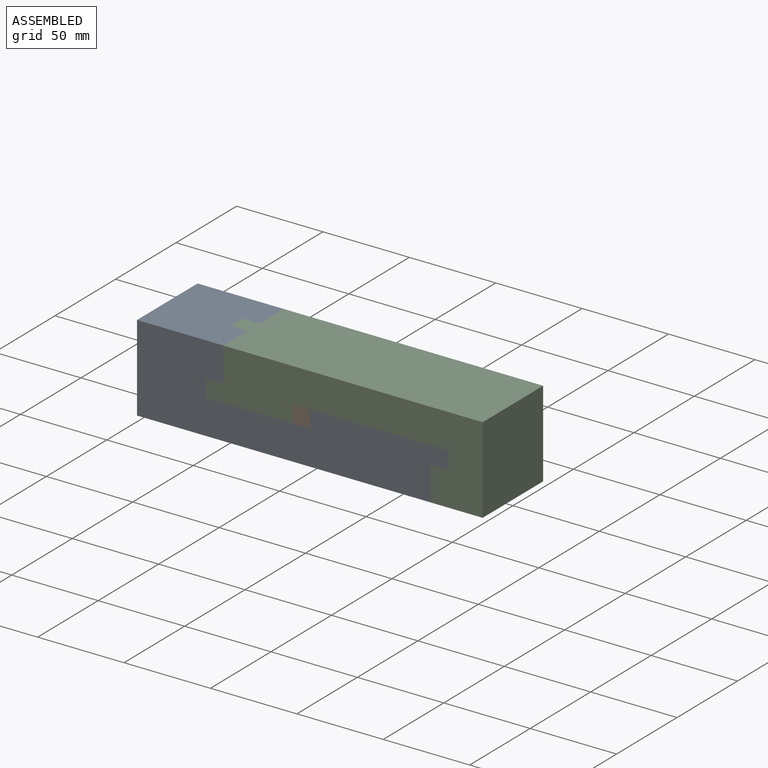
[diagram: assembled view]
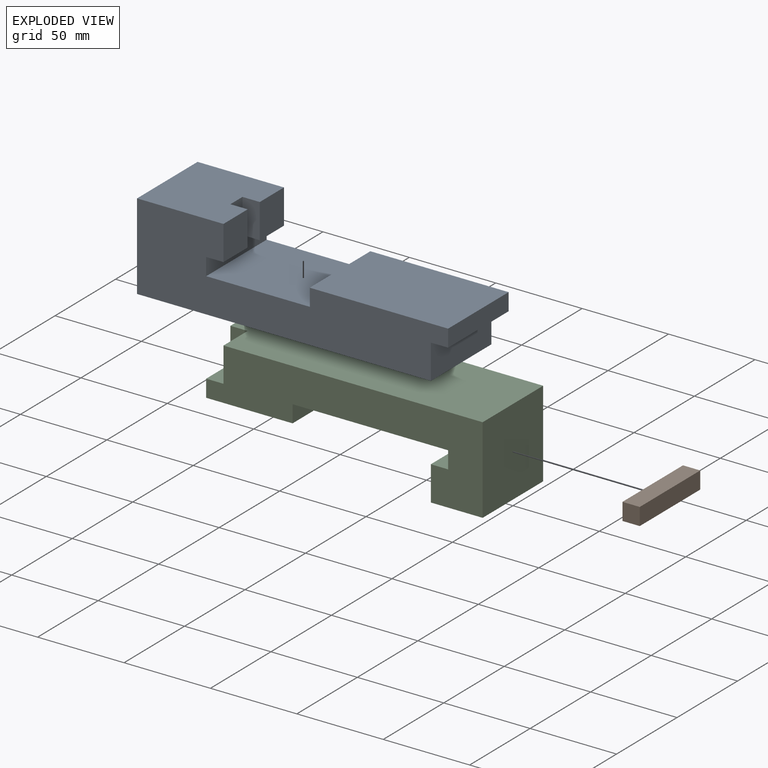
[diagram: exploded view]
GUIDED TOUR — MATED ASSEMBLY (Onshape document c86ce2c42afa6f947982e12e, AutoMate assembly c86ce2c42afa6f947982e12e_3cb3f2c267b6bb68d466cdde_ff3dd0983588e951febfa37c_default)

This assembly has 3 components, labeled P0..P2 below (a component is one placed occurrence of a part; the same part can appear more than once), held together by 6 mates. A mate is a constraint between two components; its type names the relative motion it leaves free:
  PLANAR — leaves sliding in the plane through the listed point (normal = the listed direction) and rotation about that normal free.
Axis/direction vectors are unit vectors and 'through' points are millimeter coordinates, both in the assembly's world frame.

MATES
  1. PLANAR "平面 3": P2 <-> P0, direction (0.000, -1.000, 0.000) through (29.42, -25.00, 8.37) mm
  2. PLANAR "平面 1": P2 <-> P0, direction (-1.000, 0.000, 0.000) through (-60.00, 0.00, 4.29) mm
  3. PLANAR "平面 2": P0 <-> P2, direction (0.000, 0.000, 1.000) through (-30.00, 25.00, -5.00) mm
  4. PLANAR "平面 5": P0 <-> P1, direction (-1.000, 0.000, 0.000) through (0.00, -25.00, 0.00) mm
  5. PLANAR "平面 6": P1 <-> P0, direction (0.000, -1.000, 0.000) through (-5.00, -25.00, 0.00) mm
  6. PLANAR "平面 4": P2 <-> P1, direction (0.000, 0.000, -1.000) through (-10.00, 0.00, 5.00) mm

ASSEMBLY ORDER
  1. P2 — the base component [order verified]
  2. P1 [order verified]
  3. P0 [order verified]
Order-tag legend:
  [order verified] — this step's position reverses a verified removal order: the component was checked to insert without passing through the ones already placed.

Of the 3 components, 3 carry the full construction recipe — the FeatureScript program that regenerates the part's solid from scratch; the rest are supplied as boundary geometry only.
Each toured component is shown spotlighted twice — in the assembled view, then in the exploded view, where a leader line traces a displaced component back to its assembled socket (saturated green if recipe-attached, orange if geometry-only; every other component desaturated gray) — followed by its recipe or geometry summary and the mates that hold it.
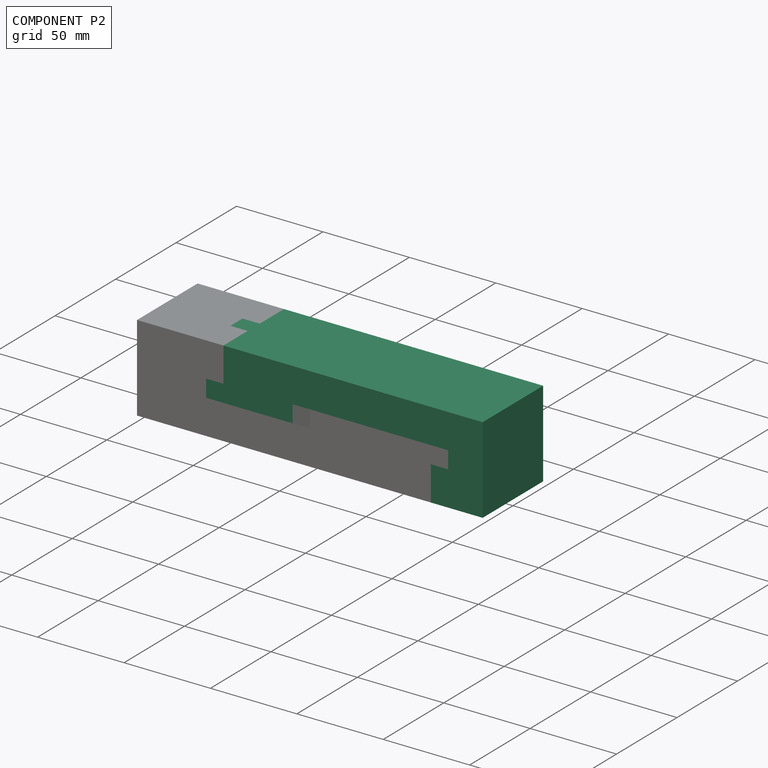
[diagram: component P2 — assembled]
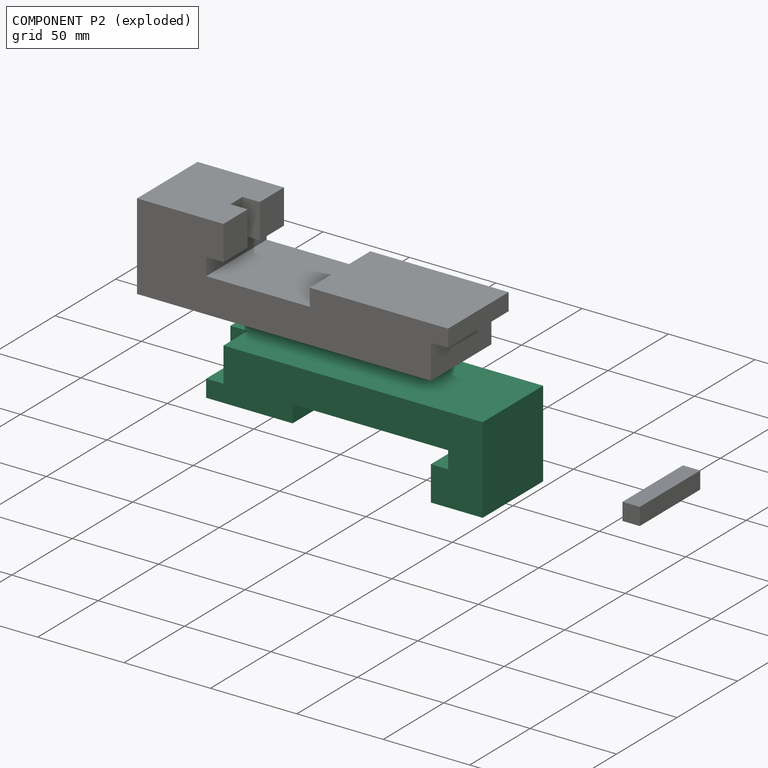
[diagram: component P2 — exploded]
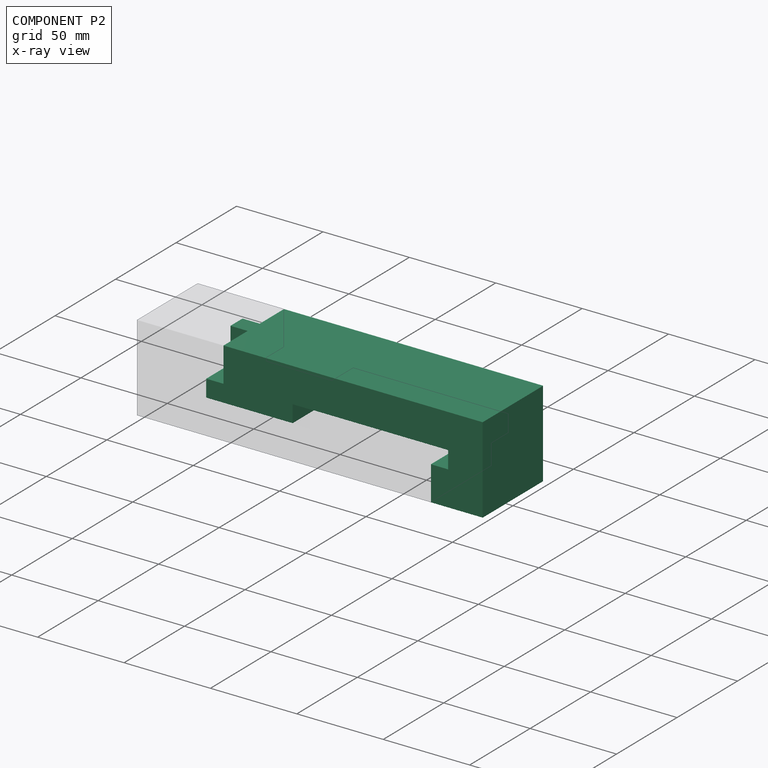
[diagram: component P2 — x-ray view]
COMPONENT P2 — recipe-attached (CADFS 00290381, mesh-verified: the recipe's output STEP matches this component's geometry to below the mesh-comparison resolution (tessellation chordal tolerance ~0.262 mm)).
Held by: PLANAR mate "平面 3" to P0; PLANAR mate "平面 1" to P0; PLANAR mate "平面 2" to P0; PLANAR mate "平面 4" to P1.
Construction recipe (FeatureScript — the CAD program that rebuilds this solid; sketch coordinates are in the units given by the * unit suffixes, e.g. mm):

FeatureScript 1511;
import(path : "onshape/std/geometry.fs", version : "1511.0");
import(path : "onshape/std/common.fs", version : "1511.0");
const mm = millimeter;
const VERTEX = EntityType.VERTEX;
const EDGE = EntityType.EDGE;
const FACE = EntityType.FACE;
const BODY = EntityType.BODY;
function v(x, y){return vector(x, y);}
function OD(order){return orderDisambiguation(order);}
function OSD(set){return originalSetDisambiguation(set);}
function TD(topology){return topologyDisambiguation(topology);}
function TDD(query){return trueDependencyDisambiguation(query);}
function sQuery(a, b, c) {return sketchEntityQuery(a, b, c);}

annotation { "Feature Type Name" : "Feature", "Feature Type Description" : "" }
export const myFeature = defineFeature(function(context is Context, id is Id, definition is map)
    precondition{}
    {
        {
            var Q0;
            Q0=qCreatedBy(makeId("Front.planeOp"),FACE);
            var sketch = newSketch(context, id + "F0", { "sketchPlane" : qUnion([Q0])});
            skLineSegment(sketch, "E0", {"start": v(0, 0) * mm, "end": v(0, 20) * mm});
            skLineSegment(sketch, "E1", {"start": v(0, 20) * mm, "end": v(10, 20) * mm});
            skLineSegment(sketch, "E2", {"start": v(10, 20) * mm, "end": v(10, 30) * mm});
            skLineSegment(sketch, "E3", {"start": v(10, 30) * mm, "end": v(-80, 30) * mm});
            skLineSegment(sketch, "E4", {"start": v(-80, 30) * mm, "end": v(-80, 20) * mm});
            skLineSegment(sketch, "E5", {"start": v(-80, 20) * mm, "end": v(-130, 20) * mm});
            skLineSegment(sketch, "E6", {"start": v(-130, 20) * mm, "end": v(-130, 30) * mm});
            skLineSegment(sketch, "E7", {"start": v(-130, 30) * mm, "end": v(-120, 30) * mm});
            skLineSegment(sketch, "E8", {"start": v(-120, 30) * mm, "end": v(-120, 50) * mm});
            skLineSegment(sketch, "E9", {"start": v(-120, 50) * mm, "end": v(30, 50) * mm});
            skLineSegment(sketch, "E10", {"start": v(30, 50) * mm, "end": v(30, 0) * mm});
            skLineSegment(sketch, "E11", {"start": v(30, 0) * mm, "end": v(0, 0) * mm});
            skSolve(sketch);
        }
        {
            var Q0;
            Q0 = qSketchRegion(id + "F0", true);
            extrude(context, id + "F1", {"entities" : qUnion([Q0]), "endBound" : BoundingType.SYMMETRIC, "depth" : 50 * mm});
        }
        {
            var Q0;
            Q0=makeQuery(id+"F1.opExtrude","SWEPT_FACE",FACE,{"disambiguationData":[OSD([sQuery(id+"F0.wireOp",EDGE,"E7")])]});
            var sketch = newSketch(context, id + "F2", { "sketchPlane" : qUnion([Q0])});
            skLineSegment(sketch, "E12", {"start": v(-130, 0) * mm, "end": v(-120, 0) * mm, "construction": true});
            skLineSegment(sketch, "E13.bottom", {"start": v(-130, 5) * mm, "end": v(-120, 5) * mm});
            skLineSegment(sketch, "E13.top", {"start": v(-130, -5) * mm, "end": v(-120, -5) * mm});
            skLineSegment(sketch, "E13.left", {"start": v(-130, 5) * mm, "end": v(-130, -5) * mm});
            skLineSegment(sketch, "E13.right", {"start": v(-120, 5) * mm, "end": v(-120, -5) * mm});
            skSolve(sketch);
        }
        {
            var Q0;
            Q0 = qSketchRegion(id + "F2", true);
            var Q1;
            Q1=makeQuery(id+"F1.opExtrude","SWEPT_FACE",FACE,{"disambiguationData":[OSD([sQuery(id+"F0.wireOp",EDGE,"E9")])]});
            extrude(context, id + "F3", {"entities" : qUnion([Q0]), "operationType" : NewBodyOperationType.ADD, "endBound" : BoundingType.UP_TO_SURFACE, "endBoundEntityFace" : qUnion([Q1]), "depth" : 25 * mm});
        }
    });
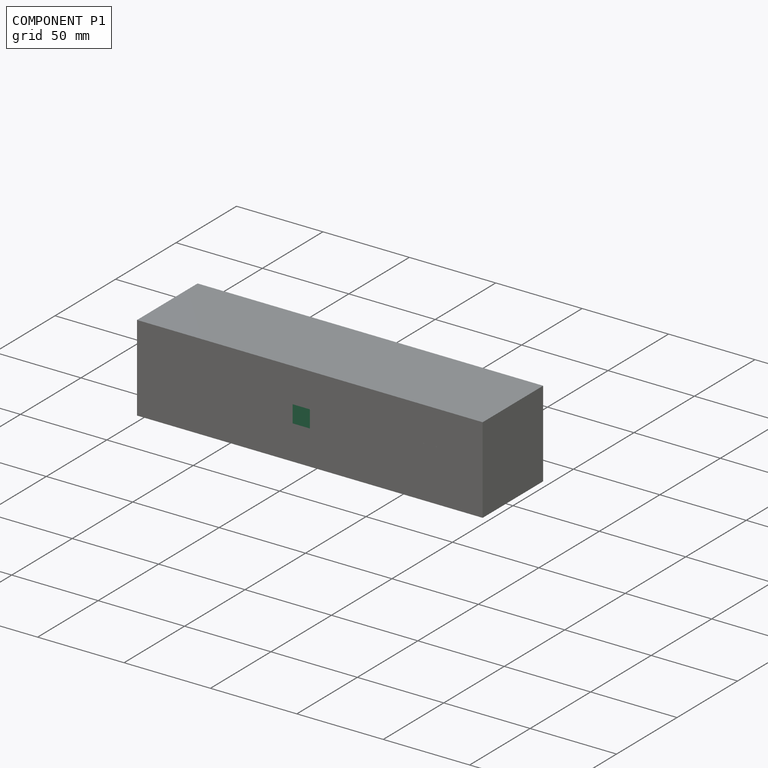
[diagram: component P1 — assembled]
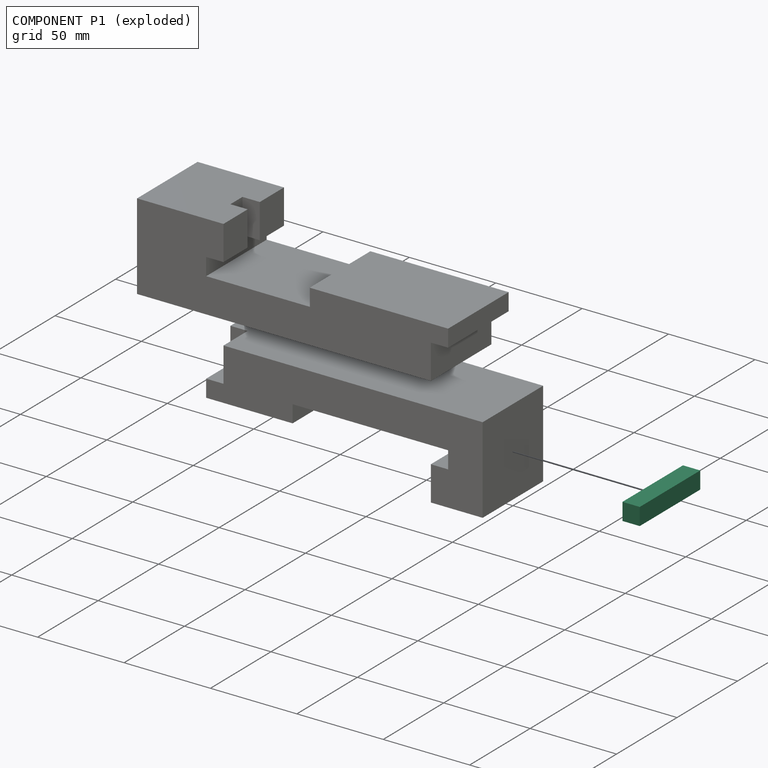
[diagram: component P1 — exploded]
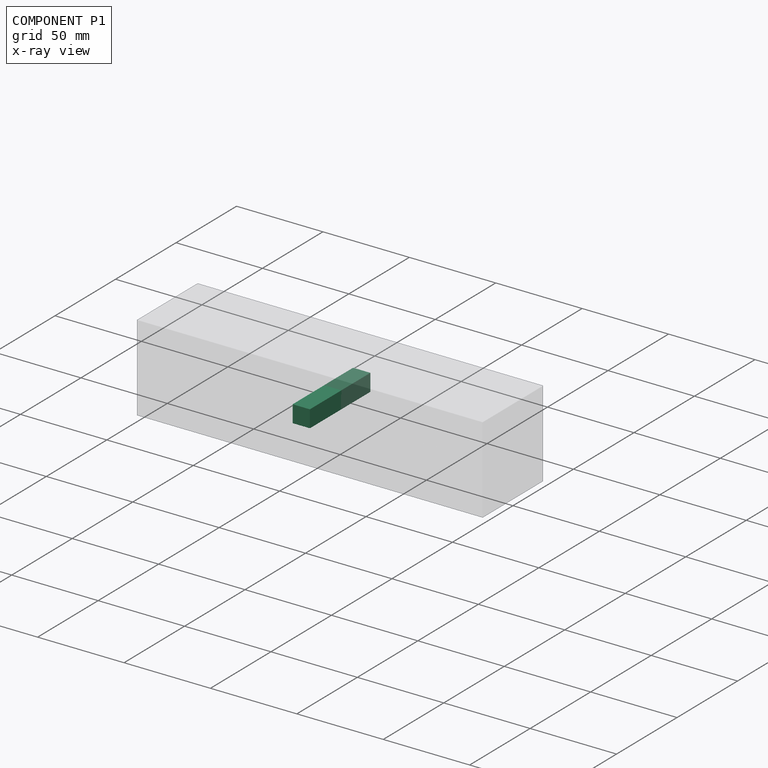
[diagram: component P1 — x-ray view]
COMPONENT P1 — recipe-attached (CADFS 00290382, mesh-verified: the recipe's output STEP matches this component's geometry to below the mesh-comparison resolution (tessellation chordal tolerance ~0.0779 mm)).
Held by: PLANAR mate "平面 5" to P0; PLANAR mate "平面 6" to P0; PLANAR mate "平面 4" to P2.
Construction recipe (FeatureScript — the CAD program that rebuilds this solid; sketch coordinates are in the units given by the * unit suffixes, e.g. mm):

FeatureScript 1511;
import(path : "onshape/std/geometry.fs", version : "1511.0");
import(path : "onshape/std/common.fs", version : "1511.0");
const mm = millimeter;
const VERTEX = EntityType.VERTEX;
const EDGE = EntityType.EDGE;
const FACE = EntityType.FACE;
const BODY = EntityType.BODY;
function v(x, y){return vector(x, y);}
function OD(order){return orderDisambiguation(order);}
function OSD(set){return originalSetDisambiguation(set);}
function TD(topology){return topologyDisambiguation(topology);}
function TDD(query){return trueDependencyDisambiguation(query);}
function sQuery(a, b, c) {return sketchEntityQuery(a, b, c);}

annotation { "Feature Type Name" : "Feature", "Feature Type Description" : "" }
export const myFeature = defineFeature(function(context is Context, id is Id, definition is map)
    precondition{}
    {
        {
            var Q0;
            Q0=qCreatedBy(makeId("Front.planeOp"),FACE);
            var sketch = newSketch(context, id + "F0", { "sketchPlane" : qUnion([Q0])});
            skLineSegment(sketch, "E0.bottom", {"start": v(5, 5) * mm, "end": v(-5, 5) * mm});
            skLineSegment(sketch, "E0.top", {"start": v(5, -5) * mm, "end": v(-5, -5) * mm});
            skLineSegment(sketch, "E0.left", {"start": v(5, 5) * mm, "end": v(5, -5) * mm});
            skLineSegment(sketch, "E0.right", {"start": v(-5, 5) * mm, "end": v(-5, -5) * mm});
            skPoint(sketch, "E0.middle", {"position": v(0, 0) * mm});
            skSolve(sketch);
        }
        {
            var Q0;
            Q0 = qSketchRegion(id + "F0", true);
            extrude(context, id + "F1", {"entities" : qUnion([Q0]), "endBound" : BoundingType.SYMMETRIC, "depth" : 50 * mm});
        }
    });
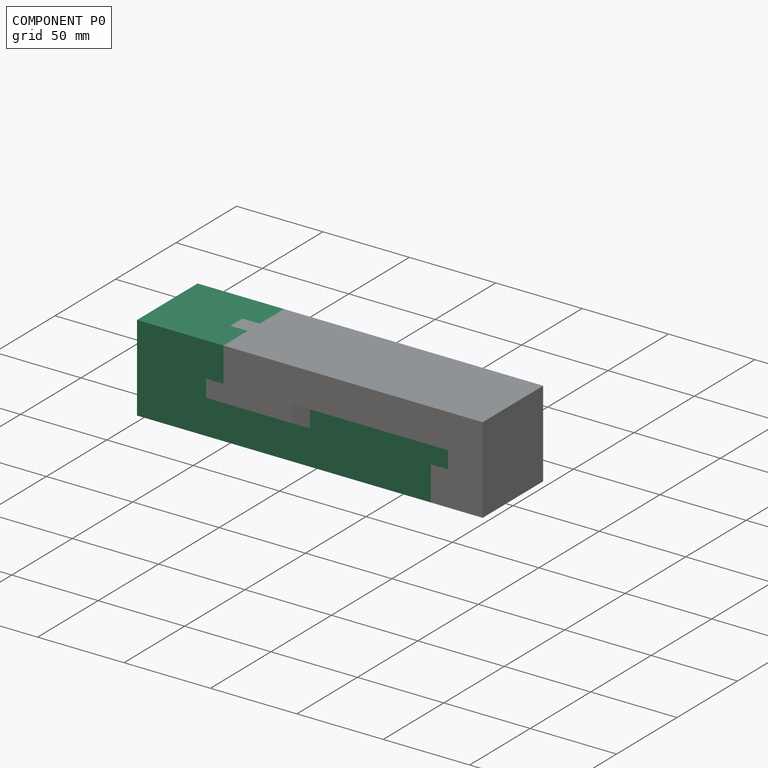
[diagram: component P0 — assembled]
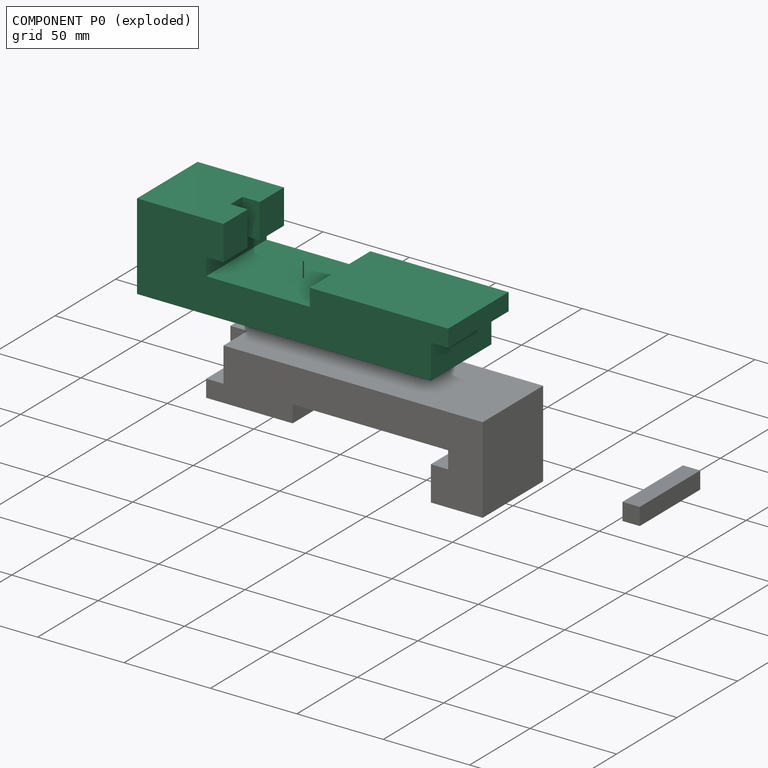
[diagram: component P0 — exploded]
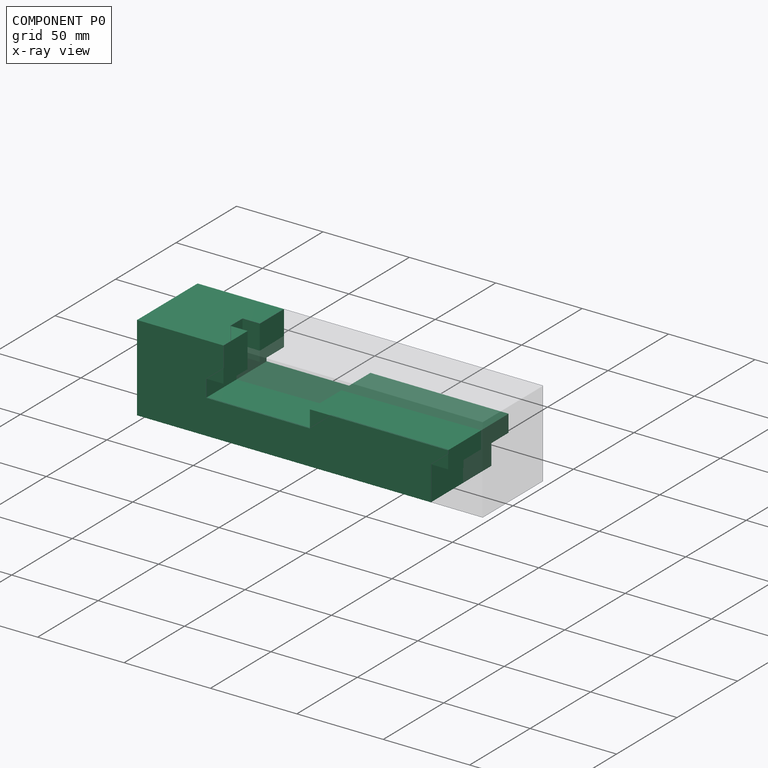
[diagram: component P0 — x-ray view]
COMPONENT P0 — recipe-attached (CADFS 00290380, mesh-verified: the recipe's output STEP matches this component's geometry to below the mesh-comparison resolution (tessellation chordal tolerance ~0.29 mm)).
Held by: PLANAR mate "平面 3" to P2; PLANAR mate "平面 1" to P2; PLANAR mate "平面 2" to P2; PLANAR mate "平面 5" to P1; PLANAR mate "平面 6" to P1.
Construction recipe (FeatureScript — the CAD program that rebuilds this solid; sketch coordinates are in the units given by the * unit suffixes, e.g. mm):

FeatureScript 1511;
import(path : "onshape/std/geometry.fs", version : "1511.0");
import(path : "onshape/std/common.fs", version : "1511.0");
const mm = millimeter;
const VERTEX = EntityType.VERTEX;
const EDGE = EntityType.EDGE;
const FACE = EntityType.FACE;
const BODY = EntityType.BODY;
function v(x, y){return vector(x, y);}
function OD(order){return orderDisambiguation(order);}
function OSD(set){return originalSetDisambiguation(set);}
function TD(topology){return topologyDisambiguation(topology);}
function TDD(query){return trueDependencyDisambiguation(query);}
function sQuery(a, b, c) {return sketchEntityQuery(a, b, c);}

annotation { "Feature Type Name" : "Feature", "Feature Type Description" : "" }
export const myFeature = defineFeature(function(context is Context, id is Id, definition is map)
    precondition{}
    {
        {
            var Q0;
            Q0=qCreatedBy(makeId("Right.planeOp"),FACE);
            var sketch = newSketch(context, id + "F0", { "sketchPlane" : qUnion([Q0])});
            skLineSegment(sketch, "E0.bottom", {"start": v(25, 25) * mm, "end": v(-25, 25) * mm});
            skLineSegment(sketch, "E0.top", {"start": v(25, -25) * mm, "end": v(-25, -25) * mm});
            skLineSegment(sketch, "E0.left", {"start": v(25, 25) * mm, "end": v(25, -25) * mm});
            skLineSegment(sketch, "E0.right", {"start": v(-25, 25) * mm, "end": v(-25, -25) * mm});
            skPoint(sketch, "E0.middle", {"position": v(0, 0) * mm});
            skSolve(sketch);
        }
        {
            var Q0;
            Q0 = qSketchRegion(id + "F0", true);
            extrude(context, id + "F1", {"entities" : qUnion([Q0]), "endBound" : BoundingType.SYMMETRIC, "depth" : 200 * mm});
        }
        {
            var Q0;
            Q0=makeQuery(id+"F1.opExtrude","SWEPT_FACE",FACE,{"disambiguationData":[OSD([sQuery(id+"F0.wireOp",EDGE,"E0.right")])]});
            var sketch = newSketch(context, id + "F2", { "sketchPlane" : qUnion([Q0])});
            skLineSegment(sketch, "E1", {"start": v(-60, -5) * mm, "end": v(0, -5) * mm});
            skLineSegment(sketch, "E2", {"start": v(0, -5) * mm, "end": v(0, 5) * mm});
            skLineSegment(sketch, "E3", {"start": v(0, 5) * mm, "end": v(80, 5) * mm});
            skLineSegment(sketch, "E4", {"start": v(80, 5) * mm, "end": v(80, -5) * mm});
            skLineSegment(sketch, "E5", {"start": v(80, -5) * mm, "end": v(70, -5) * mm});
            skLineSegment(sketch, "E6", {"start": v(70, -5) * mm, "end": v(70, -25) * mm});
            skLineSegment(sketch, "E7", {"start": v(-60, -5) * mm, "end": v(-60, 5) * mm});
            skLineSegment(sketch, "E8", {"start": v(-60, 5) * mm, "end": v(-50, 5) * mm});
            skLineSegment(sketch, "E9", {"start": v(-50, 5) * mm, "end": v(-50, 25) * mm});
            skLineSegment(sketch, "E10", {"start": v(-50, 25) * mm, "end": v(100, 25) * mm});
            skLineSegment(sketch, "E11", {"start": v(100, 25) * mm, "end": v(100, -25) * mm});
            skLineSegment(sketch, "E12", {"start": v(100, -25) * mm, "end": v(70, -25) * mm});
            skSolve(sketch);
        }
        {
            var Q0;
            Q0 = qSketchRegion(id + "F2", true);
            extrude(context, id + "F3", {"entities" : qUnion([Q0]), "operationType" : NewBodyOperationType.REMOVE, "endBound" : BoundingType.UP_TO_NEXT, "oppositeDirection" : true, "depth" : 25 * mm});
        }
        {
            var Q0;
            Q0=makeQuery(id+"F1.opExtrude","SWEPT_FACE",FACE,{"disambiguationData":[OSD([sQuery(id+"F0.wireOp",EDGE,"E0.bottom")])]});
            var sketch = newSketch(context, id + "F4", { "sketchPlane" : qUnion([Q0])});
            skLineSegment(sketch, "E13", {"start": v(-50, 0) * mm, "end": v(-100, 0) * mm, "construction": true});
            skLineSegment(sketch, "E14.bottom", {"start": v(-50, 5) * mm, "end": v(-60, 5) * mm});
            skLineSegment(sketch, "E14.top", {"start": v(-50, -5) * mm, "end": v(-60, -5) * mm});
            skLineSegment(sketch, "E14.left", {"start": v(-50, 5) * mm, "end": v(-50, -5) * mm});
            skLineSegment(sketch, "E14.right", {"start": v(-60, 5) * mm, "end": v(-60, -5) * mm});
            skSolve(sketch);
        }
        {
            var Q0;
            Q0 = qSketchRegion(id + "F4", true);
            extrude(context, id + "F5", {"entities" : qUnion([Q0]), "operationType" : NewBodyOperationType.REMOVE, "endBound" : BoundingType.UP_TO_NEXT, "oppositeDirection" : true, "depth" : 25 * mm});
        }
    });
PROVENANCE & LICENSES
Assembly (occurrences, transforms, mates, per-part STEP geometry): AutoMate dataset, Zenodo record 7776208, CC0.
Construction recipes: CADFS (HuggingFace VladPyatov/CADFS, CC-BY-4.0, layered over the ABC dataset), FeatureScript reconstruction programs keyed by ABC model id.
Join: ABC meta listings map ABC model id -> Onshape documentId; within a shared document, parts are matched by geometric signature (bounding-box dims + volume at 0.1% relative tolerance, exact B-rep face/solid counts).
Verification: 3 of this assembly's 3 components carry a recipe attachment, and every attachment is mesh-verified: the CADFS STEP and the AutoMate member STEP were compared as meshes in their shared local frame (symmetric sampled-point-to-mesh distance); worst across the 3 attachments: below the mesh-comparison resolution (tessellation chordal tolerance ~0.29 mm) on a 193 mm part.
Renders: orthographic iso camera (az 35 / el 25); the floor grid conveys scale (grid pitch printed in each image; no ruler). In the exploded view each component is displaced by its stored offset vector: the offsets alone carry the explosion direction (mate normal/axis signs are not orientation cues and do not encode it), and separation distances are assigned per mate-chain, not proportionally to assembly-order depth.
